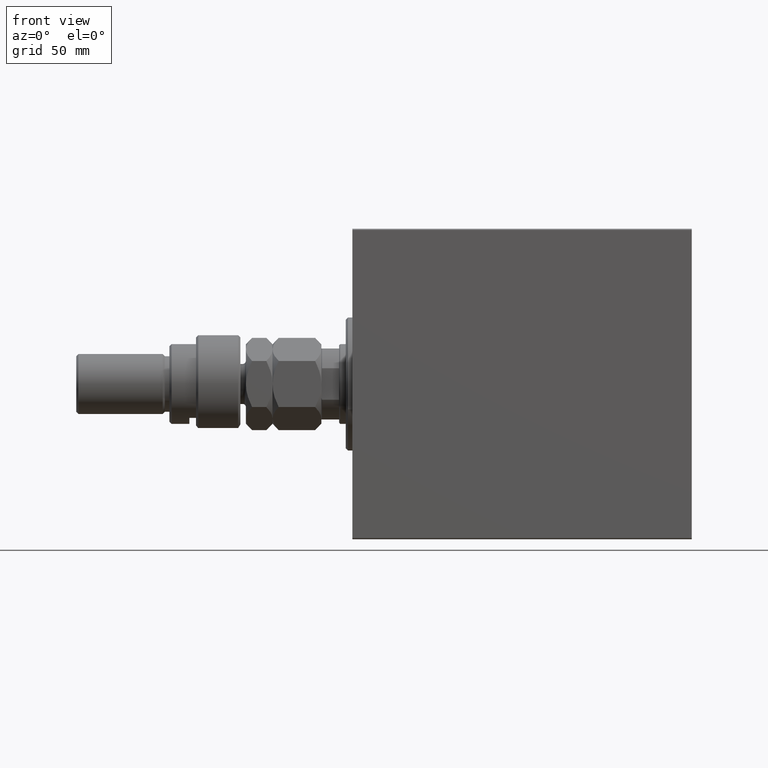
[diagram: clean part render]
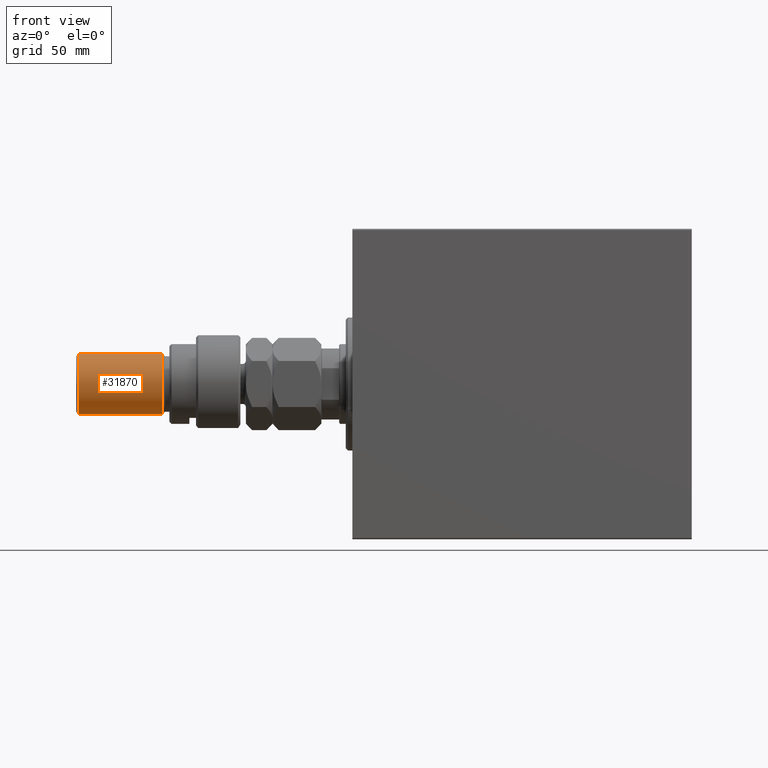
[diagram: same view with one face highlighted and labeled with its STEP entity id]
A machine part, front view. The second image highlights one B-rep face of the part: STEP entity #31870.
In plain terms, the highlighted cylindrical surface (edge-blend (fillet) strip) has radius 13.5 mm, axis along (1, -0, -0).
Its self-contained STEP definition (entity closure, byte-faithful):
#2310 = EDGE_CURVE ( 'NONE', #43490, #17436, #27297, .T. ) ;
#2729 = DIRECTION ( 'NONE',  ( -0.000000000000000000, -0.000000000000000000, -1.000000000000000000 ) ) ;
#4743 = DIRECTION ( 'NONE',  ( -1.000000000000000000, 0.000000000000000000, 0.000000000000000000 ) ) ;
#7949 = CARTESIAN_POINT ( 'NONE',  ( -13.50000000000000000, 0.000000000000000000, 74.00000000000001421 ) ) ;
#8287 = CYLINDRICAL_SURFACE ( 'NONE', #34689, 13.50000000000000000 ) ;
#8361 = EDGE_CURVE ( 'NONE', #42676, #17436, #40193, .T. ) ;
#9667 = VERTEX_POINT ( 'NONE', #41771 ) ;
#10298 = EDGE_LOOP ( 'NONE', ( #34910, #35440, #38444, #26981 ) ) ;
#10896 = DIRECTION ( 'NONE',  ( 1.000000000000000000, 0.000000000000000000, 0.000000000000000000 ) ) ;
#11133 = DIRECTION ( 'NONE',  ( -0.000000000000000000, -0.000000000000000000, 1.000000000000000000 ) ) ;
#11586 = DIRECTION ( 'NONE',  ( -0.000000000000000000, -0.000000000000000000, -1.000000000000000000 ) ) ;
#12262 = EDGE_CURVE ( 'NONE', #9667, #42676, #40761, .T. ) ;
#13581 = EDGE_CURVE ( 'NONE', #43490, #9667, #19208, .T. ) ;
#17436 = VERTEX_POINT ( 'NONE', #27124 ) ;
#19208 = CIRCLE ( 'NONE', #40327, 13.50000000000000000 ) ;
#22362 = DIRECTION ( 'NONE',  ( -0.000000000000000000, -0.000000000000000000, -1.000000000000000000 ) ) ;
#22696 = CARTESIAN_POINT ( 'NONE',  ( 0.000000000000000000, 0.000000000000000000, 74.00000000000001421 ) ) ;
#24673 = CARTESIAN_POINT ( 'NONE',  ( 13.50000000000000000, 1.653273178848926867E-15, 74.00000000000001421 ) ) ;
#25063 = DIRECTION ( 'NONE',  ( 0.000000000000000000, 0.000000000000000000, -1.000000000000000000 ) ) ;
#25849 = VECTOR ( 'NONE', #2729, 1000.000000000000000 ) ;
#26981 = ORIENTED_EDGE ( 'NONE', *, *, #8361, .T. ) ;
#27124 = CARTESIAN_POINT ( 'NONE',  ( 13.50000000000000000, 1.653273178848926867E-15, 34.99999999999999289 ) ) ;
#27297 = LINE ( 'NONE', #24673, #25849 ) ;
#27907 = DIRECTION ( 'NONE',  ( 1.000000000000000000, 0.000000000000000000, 0.000000000000000000 ) ) ;
#28571 = CARTESIAN_POINT ( 'NONE',  ( 13.50000000000000000, 1.653273178848926867E-15, 73.00000000000001421 ) ) ;
#31220 = CARTESIAN_POINT ( 'NONE',  ( 0.000000000000000000, 0.000000000000000000, 73.00000000000001421 ) ) ;
#31870 = ADVANCED_FACE ( 'NONE', ( #43942 ), #8287, .T. ) ;
#34689 = AXIS2_PLACEMENT_3D ( 'NONE', #22696, #11586, #4743 ) ;
#34910 = ORIENTED_EDGE ( 'NONE', *, *, #2310, .F. ) ;
#35440 = ORIENTED_EDGE ( 'NONE', *, *, #13581, .T. ) ;
#38444 = ORIENTED_EDGE ( 'NONE', *, *, #12262, .T. ) ;
#39420 = AXIS2_PLACEMENT_3D ( 'NONE', #46565, #11133, #10896 ) ;
#40193 = CIRCLE ( 'NONE', #39420, 13.50000000000000000 ) ;
#40311 = CARTESIAN_POINT ( 'NONE',  ( -13.50000000000000000, 0.000000000000000000, 34.99999999999999289 ) ) ;
#40327 = AXIS2_PLACEMENT_3D ( 'NONE', #31220, #25063, #27907 ) ;
#40761 = LINE ( 'NONE', #7949, #41820 ) ;
#41771 = CARTESIAN_POINT ( 'NONE',  ( -13.50000000000000000, 0.000000000000000000, 73.00000000000001421 ) ) ;
#41820 = VECTOR ( 'NONE', #22362, 1000.000000000000000 ) ;
#42676 = VERTEX_POINT ( 'NONE', #40311 ) ;
#43490 = VERTEX_POINT ( 'NONE', #28571 ) ;
#43942 = FACE_OUTER_BOUND ( 'NONE', #10298, .T. ) ;
#46565 = CARTESIAN_POINT ( 'NONE',  ( 0.000000000000000000, 0.000000000000000000, 34.99999999999999289 ) ) ;